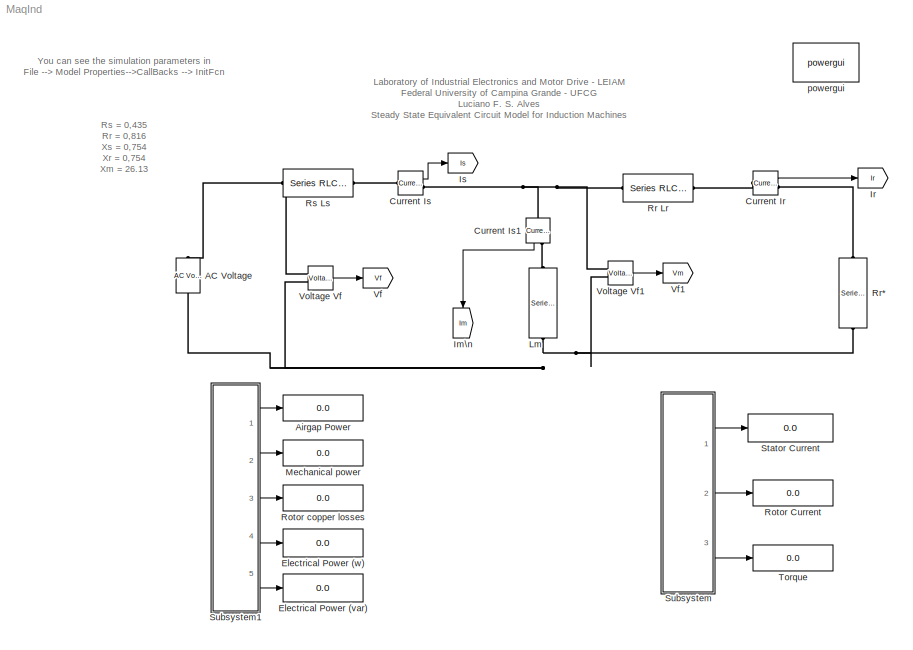
MODEL MaqInd
KIND model
CONFIG InitFcn = clc\n\n%------Simulation parameters-------\n\nVac = 220/sqrt(3);\n\nRs = 0.435;\nRr = 0.816;\nXs = 0.754;\nXr = 0.754;\nXm = 26.13;\n\nFe= 60;\nWe = 2*pi*Fe;\n\nLs = Xs/We;\nLr = Xr/We;\nLm = Xm/We;\n\ns=0.03;\np = 4;\nWs=2/p*We;\n\n
BLOCK [Reference] AC Voltage   REF=powerlib/Electrical\nSources/AC Voltage Source
  Amplitude = Vac
  Frequency = Fe
  Measurements = None
  Phase = 0
  Ports = [0, 0, 0, 0, 0, 1, 1]
  SID = 90
  SampleTime = 0
  SourceBlock = powerlib/Electrical\nSources/AC Voltage Source
  SourceType = AC Voltage Source
BLOCK [Display] Airgap Power 
  Decimation = 1
  Lockdown = off
  Ports = [1]
  SID = 121
BLOCK [Reference] Current Ir  REF=powerlib/Measurements/Current Measurement
  OutputType = Magnitude
  PSBequivalent = 0
  PhasorSimulation = on
  Ports = [0, 1, 0, 0, 0, 1, 1]
  SID = 11
  SourceBlock = powerlib/Measurements/Current Measurement
  SourceType = Current Measurement
BLOCK [Reference] Current Is  REF=powerlib/Measurements/Current Measurement
  OutputType = Magnitude
  PSBequivalent = 0
  PhasorSimulation = on
  Ports = [0, 1, 0, 0, 0, 1, 1]
  SID = 53
  SourceBlock = powerlib/Measurements/Current Measurement
  SourceType = Current Measurement
BLOCK [Reference] Current Is1  REF=powerlib/Measurements/Current Measurement
  OutputType = Magnitude
  PSBequivalent = 0
  PhasorSimulation = on
  Ports = [0, 1, 0, 0, 0, 1, 1]
  SID = 108
  SourceBlock = powerlib/Measurements/Current Measurement
  SourceType = Current Measurement
BLOCK [Display] Electrical Power (var)
  Decimation = 1
  Lockdown = off
  Ports = [1]
  SID = 145
BLOCK [Display] Electrical Power (w)
  Decimation = 1
  Lockdown = off
  Ports = [1]
  SID = 98
BLOCK [Goto] Im\n
  GotoTag = Im
  SID = 109
  TagVisibility = global
BLOCK [Goto] Ir
  GotoTag = Ir
  SID = 101
  TagVisibility = global
BLOCK [Goto] Is
  GotoTag = Is
  SID = 100
  TagVisibility = global
BLOCK [Reference] Lm  REF=powerlib/Elements/Series RLC Branch
  BranchType = L
  Capacitance = 1e-6
  Inductance = Lm
  InitialCurrent = 0
  InitialVoltage = 0
  LConnTagsString = __new0
  Measurements = None
  Ports = [0, 0, 0, 0, 0, 1, 1]
  RConnTagsString = __new0
  Resistance = 1
  SID = 2
  SetiL0 = off
  Setx0 = off
  SourceBlock = powerlib/Elements/Series RLC Branch
  SourceType = Series RLC Branch
BLOCK [Display] Mechanical power
  Decimation = 1
  Lockdown = off
  Ports = [1]
  SID = 129
BLOCK [Display] Rotor Current 
  Decimation = 1
  Lockdown = off
  Ports = [1]
  SID = 74
BLOCK [Display] Rotor copper  losses
  Decimation = 1
  Lockdown = off
  Ports = [1]
  SID = 125
BLOCK [Reference] Rr Lr  REF=powerlib/Elements/Series RLC Branch
  BranchType = RL
  Capacitance = 1e-6
  Inductance = Lr
  InitialCurrent = 0
  InitialVoltage = 0
  LConnTagsString = __new0
  Measurements = None
  Ports = [0, 0, 0, 0, 0, 1, 1]
  RConnTagsString = __new0
  Resistance = Rr
  SID = 3
  SetiL0 = off
  Setx0 = off
  SourceBlock = powerlib/Elements/Series RLC Branch
  SourceType = Series RLC Branch
BLOCK [Reference] Rr*  REF=powerlib/Elements/Series RLC Branch
  BranchType = R
  Capacitance = 1e-6
  Inductance = 1e-3
  InitialCurrent = 0
  InitialVoltage = 0
  LConnTagsString = __new0
  Measurements = None
  Ports = [0, 0, 0, 0, 0, 1, 1]
  RConnTagsString = __new0
  Resistance = Rr*((1-s)/s)
  SID = 4
  SetiL0 = off
  Setx0 = off
  SourceBlock = powerlib/Elements/Series RLC Branch
  SourceType = Series RLC Branch
BLOCK [Reference] Rs Ls  REF=powerlib/Elements/Series RLC Branch
  BranchType = RL
  Capacitance = 1e-6
  Inductance = Ls
  InitialCurrent = 0
  InitialVoltage = 0
  LConnTagsString = __new0
  Measurements = None
  Ports = [0, 0, 0, 0, 0, 1, 1]
  RConnTagsString = __new0
  Resistance = Rs
  SID = 1
  SetiL0 = off
  Setx0 = off
  SourceBlock = powerlib/Elements/Series RLC Branch
  SourceType = Series RLC Branch
BLOCK [Display] Stator Current 
  Decimation = 1
  Lockdown = off
  Ports = [1]
  SID = 73
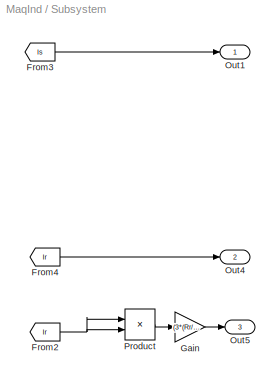
BLOCK [SubSystem] Subsystem
  FunctionWithSeparateData = off
  MaskHideContents = off
  MinAlgLoopOccurrences = off
  Opaque = off
  Ports = [0, 3]
  PropExecContextOutsideSubsystem = off
  RTWSystemCode = Auto
  RequestExecContextInheritance = off
  SID = 130
BLOCK [From] Subsystem/From2
  GotoTag = Ir
  SID = 104
  TagVisibility = global
BLOCK [From] Subsystem/From3
  GotoTag = Is
  SID = 106
  TagVisibility = global
BLOCK [From] Subsystem/From4
  GotoTag = Ir
  SID = 107
  TagVisibility = global
BLOCK [Gain] Subsystem/Gain
  Gain = (3*(Rr/s))/Ws
  OutDataTypeStr = Inherit: Inherit via internal rule
  ParamDataTypeStr = Inherit: Inherit via internal rule
  SID = 12
  SaturateOnIntegerOverflow = off
BLOCK [Outport] Subsystem/Out1
  IconDisplay = Port number
  SID = 131
BLOCK [Outport] Subsystem/Out4
  IconDisplay = Port number
  Port = 2
  SID = 134
BLOCK [Outport] Subsystem/Out5
  IconDisplay = Port number
  Port = 3
  SID = 135
BLOCK [Product] Subsystem/Product
  InputSameDT = off
  OutDataTypeStr = Inherit: Inherit via internal rule
  Ports = [2, 1]
  RndMeth = Floor
  SID = 51
  SaturateOnIntegerOverflow = off
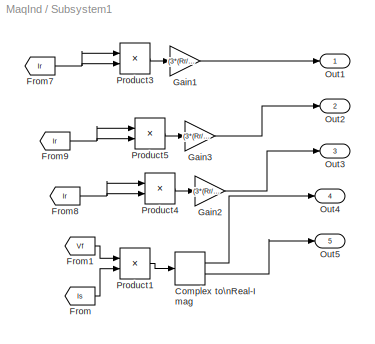
BLOCK [SubSystem] Subsystem1
  FunctionWithSeparateData = off
  MaskHideContents = off
  MinAlgLoopOccurrences = off
  Opaque = off
  Ports = [0, 5]
  PropExecContextOutsideSubsystem = off
  RTWSystemCode = Auto
  RequestExecContextInheritance = off
  SID = 146
BLOCK [ComplexToRealImag] Subsystem1/Complex to\nReal-Imag
  Ports = [1, 2]
  SID = 95
BLOCK [From] Subsystem1/From
  GotoTag = Is
  SID = 102
  TagVisibility = global
BLOCK [From] Subsystem1/From1
  GotoTag = Vf
  SID = 103
  TagVisibility = global
BLOCK [From] Subsystem1/From7
  GotoTag = Ir
  SID = 118
  TagVisibility = global
BLOCK [From] Subsystem1/From8
  GotoTag = Ir
  SID = 122
  TagVisibility = global
BLOCK [From] Subsystem1/From9
  GotoTag = Ir
  SID = 126
  TagVisibility = global
BLOCK [Gain] Subsystem1/Gain1
  Gain = (3*(Rr/s))
  OutDataTypeStr = Inherit: Inherit via internal rule
  ParamDataTypeStr = Inherit: Inherit via internal rule
  SID = 119
  SaturateOnIntegerOverflow = off
BLOCK [Gain] Subsystem1/Gain2
  Gain = (3*(Rr/s))*s
  OutDataTypeStr = Inherit: Inherit via internal rule
  ParamDataTypeStr = Inherit: Inherit via internal rule
  SID = 123
  SaturateOnIntegerOverflow = off
BLOCK [Gain] Subsystem1/Gain3
  Gain = (3*(Rr/s))*(1-s)
  OutDataTypeStr = Inherit: Inherit via internal rule
  ParamDataTypeStr = Inherit: Inherit via internal rule
  SID = 127
  SaturateOnIntegerOverflow = off
BLOCK [Outport] Subsystem1/Out1
  IconDisplay = Port number
  SID = 147
BLOCK [Outport] Subsystem1/Out2
  IconDisplay = Port number
  Port = 2
  SID = 148
BLOCK [Outport] Subsystem1/Out3
  IconDisplay = Port number
  Port = 3
  SID = 149
BLOCK [Outport] Subsystem1/Out4
  IconDisplay = Port number
  Port = 4
  SID = 150
BLOCK [Outport] Subsystem1/Out5
  IconDisplay = Port number
  Port = 5
  SID = 151
BLOCK [Product] Subsystem1/Product1
  InputSameDT = off
  OutDataTypeStr = Inherit: Inherit via internal rule
  Ports = [2, 1]
  RndMeth = Floor
  SID = 97
  SaturateOnIntegerOverflow = off
BLOCK [Product] Subsystem1/Product3
  InputSameDT = off
  OutDataTypeStr = Inherit: Inherit via internal rule
  Ports = [2, 1]
  RndMeth = Floor
  SID = 120
  SaturateOnIntegerOverflow = off
BLOCK [Product] Subsystem1/Product4
  InputSameDT = off
  OutDataTypeStr = Inherit: Inherit via internal rule
  Ports = [2, 1]
  RndMeth = Floor
  SID = 124
  SaturateOnIntegerOverflow = off
BLOCK [Product] Subsystem1/Product5
  InputSameDT = off
  OutDataTypeStr = Inherit: Inherit via internal rule
  Ports = [2, 1]
  RndMeth = Floor
  SID = 128
  SaturateOnIntegerOverflow = off
BLOCK [Display] Torque
  Decimation = 1
  Lockdown = off
  Ports = [1]
  SID = 77
BLOCK [Goto] Vf
  GotoTag = Vf
  SID = 99
  TagVisibility = global
BLOCK [Goto] Vf1
  GotoTag = Vm
  SID = 110
  TagVisibility = global
BLOCK [Reference] Voltage Vf  REF=powerlib/Measurements/Voltage Measurement
  OutputType = Magnitude
  PSBequivalent = 0
  PhasorSimulation = on
  Ports = [0, 1, 0, 0, 0, 2]
  SID = 96
  SourceBlock = powerlib/Measurements/Voltage Measurement
  SourceType = Voltage Measurement
BLOCK [Reference] Voltage Vf1  REF=powerlib/Measurements/Voltage Measurement
  OutputType = Magnitude
  PSBequivalent = 0
  PhasorSimulation = on
  Ports = [0, 1, 0, 0, 0, 2]
  SID = 111
  SourceBlock = powerlib/Measurements/Voltage Measurement
  SourceType = Voltage Measurement
BLOCK [Reference] powergui  REF=powerlib/powergui
  DisableRonSwitches = off
  DisableSnubberDevices = off
  DisableVfSwitches = off
  DisplayEquations = off
  DisplayStyle = 1
  EnableUseOfTLC = off
  ErrMax = 1e-4
  Frange = [0:2:500]
  FreqAxis = off
  FunctionMessages = off
  HookPort = off
  Interpol = off
  Iterations = 50
  MaxFrequency = 1000
  Pbase = 100e6
  Ports = []
  Priority = 1
  ResistiveCurrentMeasurement = off
  RestoreLinks = warning
  RmsSteady = 1
  SID = 9
  SPID = off
  SampleTime = 50e-6
  ShowGrid = off
  SolverType = Tustin
  SourceBlock = powerlib/powergui
  SourceType = PSB option menu block
  StartTime = 0.0
  SwTol = 0
  Ts = 0
  UnitsV = kV
  UnitsW = MW
  UserData = DataTag0
  UserDataPersistent = on
  Xlog = on
  Ylog = off
  ZoomFFT = off
  cycles = 1
  display = off
  echomessages = off
  frequency = 60
  frequencyindice = 60
  frequencyindicesteady = 1
  fundamental = 60
  methode = off
  save = off
  variable = ZData
  x0status = blocks
ANNOTATION (root): Rs = 0,435\nRr = 0,816\nXs = 0,754\nXr = 0,754\nXm = 26.13\n
ANNOTATION (root): You can see the simulation parameters in\n File --> Model Properties-->CallBacks --> InitFcn
ANNOTATION (root): \n\n Laboratory of Industrial Electronics and Motor Drive - LEIAM\nFederal University of Campina Grande - UFCG\n Luciano F. S. Alves\nSteady State Equivalent Circuit Model for Induction Machines
LINE Current Ir:1 -> Ir:1
LINE Current Is1:1 -> Im\n:1
LINE Current Is:1 -> Is:1
NET Subsystem/From2:1 -> Subsystem/Product:1, Subsystem/Product:2
LINE Subsystem/From3:1 -> Subsystem/Out1:1
LINE Subsystem/From4:1 -> Subsystem/Out4:1
LINE Subsystem/Gain:1 -> Subsystem/Out5:1
LINE Subsystem/Product:1 -> Subsystem/Gain:1
LINE Subsystem1/Complex to\nReal-Imag:1 -> Subsystem1/Out4:1
LINE Subsystem1/Complex to\nReal-Imag:2 -> Subsystem1/Out5:1
LINE Subsystem1/From1:1 -> Subsystem1/Product1:1
NET Subsystem1/From7:1 -> Subsystem1/Product3:1, Subsystem1/Product3:2
NET Subsystem1/From8:1 -> Subsystem1/Product4:1, Subsystem1/Product4:2
NET Subsystem1/From9:1 -> Subsystem1/Product5:1, Subsystem1/Product5:2
LINE Subsystem1/From:1 -> Subsystem1/Product1:2
LINE Subsystem1/Gain1:1 -> Subsystem1/Out1:1
LINE Subsystem1/Gain2:1 -> Subsystem1/Out3:1
LINE Subsystem1/Gain3:1 -> Subsystem1/Out2:1
LINE Subsystem1/Product1:1 -> Subsystem1/Complex to\nReal-Imag:1
LINE Subsystem1/Product3:1 -> Subsystem1/Gain1:1
LINE Subsystem1/Product4:1 -> Subsystem1/Gain2:1
LINE Subsystem1/Product5:1 -> Subsystem1/Gain3:1
LINE Subsystem1:1 -> Airgap Power :1
LINE Subsystem1:2 -> Mechanical power:1
LINE Subsystem1:3 -> Rotor copper  losses:1
LINE Subsystem1:4 -> Electrical Power (w):1
LINE Subsystem1:5 -> Electrical Power (var):1
LINE Subsystem:1 -> Stator Current :1
LINE Subsystem:2 -> Rotor Current :1
LINE Subsystem:3 -> Torque:1
LINE Voltage Vf1:1 -> Vf1:1
LINE Voltage Vf:1 -> Vf:1
PNET net1: AC Voltage :LConn1 -- Lm:RConn1 -- Rr*:RConn1 -- Voltage Vf1:LConn2 -- Voltage Vf:LConn2
PNET net2: AC Voltage :RConn1 -- Rs Ls:LConn1 -- Voltage Vf:LConn1
PLINE Current Ir:LConn1 -- Rr Lr:RConn1
PLINE Current Ir:RConn1 -- Rr*:LConn1
PNET net3: Current Is1:LConn1 -- Current Is:RConn1 -- Rr Lr:LConn1 -- Voltage Vf1:LConn1
PLINE Current Is1:RConn1 -- Lm:LConn1
PLINE Current Is:LConn1 -- Rs Ls:RConn1
note: NET lines group one-source signal fan-out (src -> all destinations, sorted); 1:1 wires keep LINE; PNET lines group multi-terminal physical nets as a canonical sorted terminal list (undirected conserving connections); 2-terminal nets keep the pairwise PLINE form
